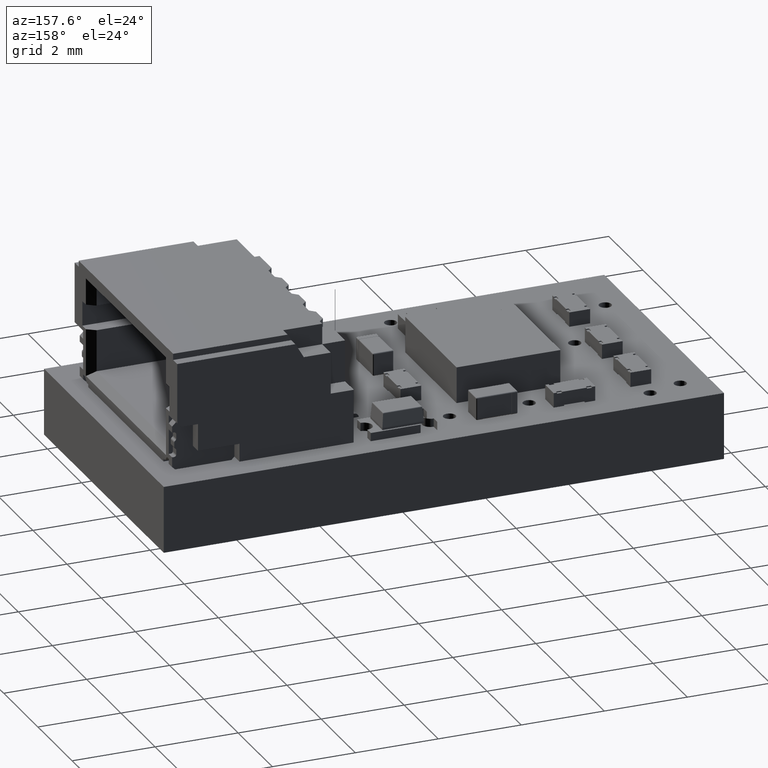
[diagram: clean part render]
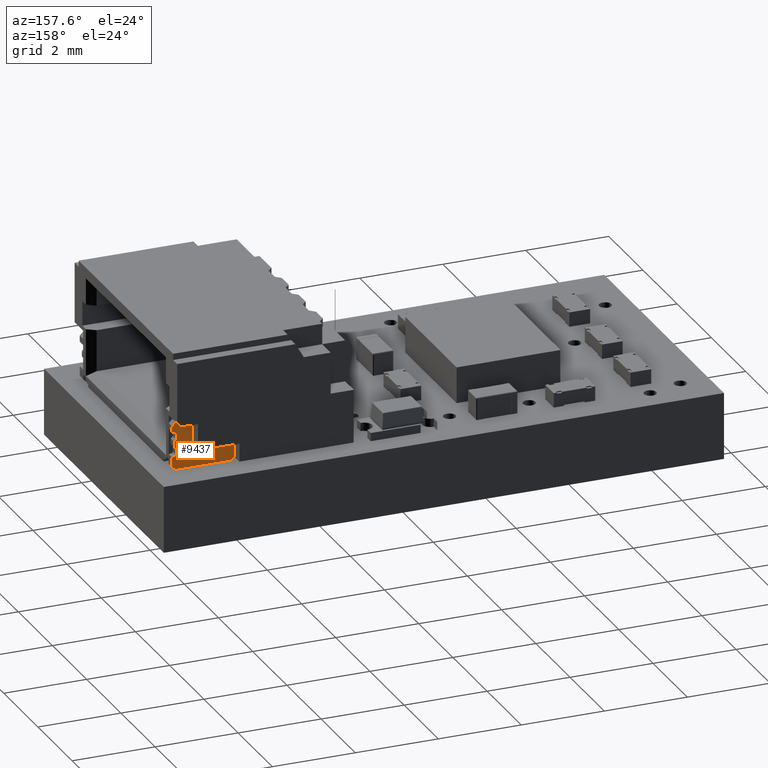
[diagram: same view with one face highlighted and labeled with its STEP entity id]
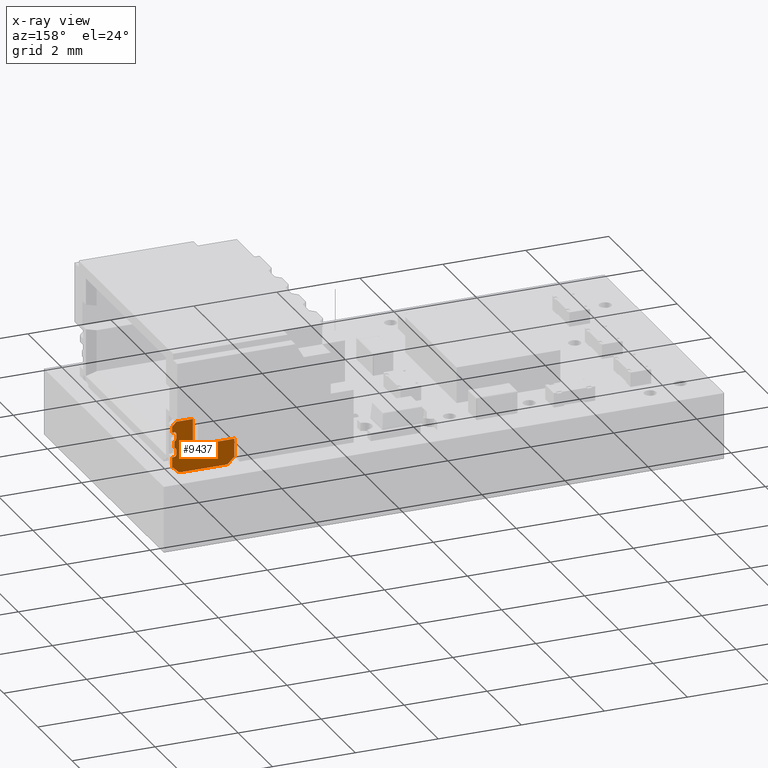
[diagram: x-ray of the same camera — body ghosted, the highlighted face saturated]
A machine part, auxiliary view. The second image highlights one B-rep face of the part: STEP entity #9437.
The next image is the same camera in x-ray: the body ghosted, the highlighted face saturated — about 0% of this face is hidden behind the body in this view.
In plain terms, the highlighted planar face has unit normal (0, -1, -0).
Its self-contained STEP definition (entity closure, byte-faithful):
#8723 = VERTEX_POINT('',#8724);
#8724 = CARTESIAN_POINT('',(2.7,1.555,3.395));
#8730 = EDGE_CURVE('',#8731,#8723,#8733,.T.);
#8731 = VERTEX_POINT('',#8732);
#8732 = CARTESIAN_POINT('',(2.7,0.905,3.395));
#8733 = LINE('',#8734,#8735);
#8734 = CARTESIAN_POINT('',(2.7,0.905,3.395));
#8735 = VECTOR('',#8736,1.);
#8736 = DIRECTION('',(0.,1.,2.668805347657E-15));
#8761 = VERTEX_POINT('',#8762);
#8762 = CARTESIAN_POINT('',(2.7,1.555,3.795));
#8768 = EDGE_CURVE('',#8723,#8761,#8769,.T.);
#8769 = LINE('',#8770,#8771);
#8770 = CARTESIAN_POINT('',(2.7,1.555,3.395));
#8771 = VECTOR('',#8772,1.);
#8772 = DIRECTION('',(7.589415207398E-15,0.,1.));
#8792 = VERTEX_POINT('',#8793);
#8793 = CARTESIAN_POINT('',(2.7,1.455,3.895));
#8799 = EDGE_CURVE('',#8761,#8792,#8800,.T.);
#8800 = LINE('',#8801,#8802);
#8801 = CARTESIAN_POINT('',(2.7,1.555,3.795));
#8802 = VECTOR('',#8803,1.);
#8803 = DIRECTION('',(3.066586833367E-15,-0.707106781187,0.707106781187)
  );
#8823 = VERTEX_POINT('',#8824);
#8824 = CARTESIAN_POINT('',(2.7,1.305,3.895));
#8830 = EDGE_CURVE('',#8792,#8823,#8831,.T.);
#8831 = LINE('',#8832,#8833);
#8832 = CARTESIAN_POINT('',(2.7,1.455,3.895));
#8833 = VECTOR('',#8834,1.);
#8834 = DIRECTION('',(0.,-1.,0.));
#8854 = VERTEX_POINT('',#8855);
#8855 = CARTESIAN_POINT('',(2.7,1.305,3.845));
#8861 = EDGE_CURVE('',#8823,#8854,#8862,.T.);
#8862 = LINE('',#8863,#8864);
#8863 = CARTESIAN_POINT('',(2.7,1.305,3.895));
#8864 = VECTOR('',#8865,1.);
#8865 = DIRECTION('',(0.,0.,-1.));
#8877 = EDGE_CURVE('',#8854,#8878,#8880,.T.);
#8878 = VERTEX_POINT('',#8879);
#8879 = CARTESIAN_POINT('',(2.7,1.255,3.795));
#8880 = CIRCLE('',#8881,5.E-02);
#8881 = AXIS2_PLACEMENT_3D('',#8882,#8883,#8884);
#8882 = CARTESIAN_POINT('',(2.7,1.255,3.845));
#8883 = DIRECTION('',(-1.,-0.,6.938893903907E-15));
#8884 = DIRECTION('',(6.938893903907E-15,0.,1.));
#8918 = VERTEX_POINT('',#8919);
#8919 = CARTESIAN_POINT('',(2.7,1.141602540378,3.795));
#8925 = EDGE_CURVE('',#8878,#8918,#8926,.T.);
#8926 = LINE('',#8927,#8928);
#8927 = CARTESIAN_POINT('',(2.7,1.255,3.795));
#8928 = VECTOR('',#8929,1.);
#8929 = DIRECTION('',(0.,-1.,0.));
#8941 = EDGE_CURVE('',#8918,#8942,#8944,.T.);
#8942 = VERTEX_POINT('',#8943);
#8943 = CARTESIAN_POINT('',(2.7,1.098301270189,3.82));
#8944 = CIRCLE('',#8945,5.E-02);
#8945 = AXIS2_PLACEMENT_3D('',#8946,#8947,#8948);
#8946 = CARTESIAN_POINT('',(2.7,1.141602540378,3.845));
#8947 = DIRECTION('',(-1.,-0.,6.938893903907E-15));
#8948 = DIRECTION('',(6.938893903907E-15,0.,1.));
#8983 = VERTEX_POINT('',#8984);
#8984 = CARTESIAN_POINT('',(2.7,1.055,3.845));
#8990 = EDGE_CURVE('',#8942,#8983,#8991,.T.);
#8991 = CIRCLE('',#8992,5.E-02);
#8992 = AXIS2_PLACEMENT_3D('',#8993,#8994,#8995);
#8993 = CARTESIAN_POINT('',(2.7,1.055,3.795));
#8994 = DIRECTION('',(1.,0.,-6.938893903907E-15));
#8995 = DIRECTION('',(-6.938893903907E-15,0.,-1.));
#9015 = VERTEX_POINT('',#9016);
#9016 = CARTESIAN_POINT('',(2.7,0.955,3.845));
#9022 = EDGE_CURVE('',#8983,#9015,#9023,.T.);
#9023 = LINE('',#9024,#9025);
#9024 = CARTESIAN_POINT('',(2.7,1.055,3.845));
#9025 = VECTOR('',#9026,1.);
#9026 = DIRECTION('',(0.,-1.,0.));
#9047 = VERTEX_POINT('',#9048);
#9048 = CARTESIAN_POINT('',(2.7,0.911698729811,3.82));
#9054 = EDGE_CURVE('',#9015,#9047,#9055,.T.);
#9055 = CIRCLE('',#9056,5.E-02);
#9056 = AXIS2_PLACEMENT_3D('',#9057,#9058,#9059);
#9057 = CARTESIAN_POINT('',(2.7,0.955,3.795));
#9058 = DIRECTION('',(1.,0.,-6.938893903907E-15));
#9059 = DIRECTION('',(6.938893903907E-15,0.,1.));
#9071 = EDGE_CURVE('',#9047,#9072,#9074,.T.);
#9072 = VERTEX_POINT('',#9073);
#9073 = CARTESIAN_POINT('',(2.7,0.868397459622,3.795));
#9074 = CIRCLE('',#9075,5.E-02);
#9075 = AXIS2_PLACEMENT_3D('',#9076,#9077,#9078);
#9076 = CARTESIAN_POINT('',(2.7,0.868397459622,3.845));
#9077 = DIRECTION('',(-1.,-0.,6.938893903907E-15));
#9078 = DIRECTION('',(-6.938893903907E-15,0.,-1.));
#9112 = VERTEX_POINT('',#9113);
#9113 = CARTESIAN_POINT('',(2.7,0.755,3.795));
#9119 = EDGE_CURVE('',#9072,#9112,#9120,.T.);
#9120 = LINE('',#9121,#9122);
#9121 = CARTESIAN_POINT('',(2.7,0.755,3.795));
#9122 = VECTOR('',#9123,1.);
#9123 = DIRECTION('',(-0.,-1.,-0.));
#9135 = EDGE_CURVE('',#9112,#9136,#9138,.T.);
#9136 = VERTEX_POINT('',#9137);
#9137 = CARTESIAN_POINT('',(2.7,0.705,3.845));
#9138 = CIRCLE('',#9139,5.E-02);
#9139 = AXIS2_PLACEMENT_3D('',#9140,#9141,#9142);
#9140 = CARTESIAN_POINT('',(2.7,0.755,3.845));
#9141 = DIRECTION('',(-1.,-0.,6.938893903907E-15));
#9142 = DIRECTION('',(-6.938893903907E-15,0.,-1.));
#9176 = VERTEX_POINT('',#9177);
#9177 = CARTESIAN_POINT('',(2.7,0.705,3.895));
#9183 = EDGE_CURVE('',#9136,#9176,#9184,.T.);
#9184 = LINE('',#9185,#9186);
#9185 = CARTESIAN_POINT('',(2.7,0.705,3.895));
#9186 = VECTOR('',#9187,1.);
#9187 = DIRECTION('',(-0.,-0.,1.));
#9207 = VERTEX_POINT('',#9208);
#9208 = CARTESIAN_POINT('',(2.7,0.47,3.895));
#9214 = EDGE_CURVE('',#9176,#9207,#9215,.T.);
#9215 = LINE('',#9216,#9217);
#9216 = CARTESIAN_POINT('',(2.7,0.705,3.895));
#9217 = VECTOR('',#9218,1.);
#9218 = DIRECTION('',(0.,-1.,0.));
#9238 = VERTEX_POINT('',#9239);
#9239 = CARTESIAN_POINT('',(2.7,0.334289321881,3.759289321881));
#9245 = EDGE_CURVE('',#9207,#9238,#9246,.T.);
#9246 = LINE('',#9247,#9248);
#9247 = CARTESIAN_POINT('',(2.7,0.47,3.895));
#9248 = VECTOR('',#9249,1.);
#9249 = DIRECTION('',(-4.519300729874E-15,-0.707106781187,
    -0.707106781187));
#9270 = VERTEX_POINT('',#9271);
#9271 = CARTESIAN_POINT('',(2.7,0.305,3.688578643763));
#9277 = EDGE_CURVE('',#9238,#9270,#9278,.T.);
#9278 = CIRCLE('',#9279,0.1);
#9279 = AXIS2_PLACEMENT_3D('',#9280,#9281,#9282);
#9280 = CARTESIAN_POINT('',(2.7,0.405,3.688578643763));
#9281 = DIRECTION('',(1.,0.,-6.938893903907E-15));
#9282 = DIRECTION('',(-6.938893903907E-15,0.,-1.));
#9302 = VERTEX_POINT('',#9303);
#9303 = CARTESIAN_POINT('',(2.7,0.305,2.601421356237));
#9309 = EDGE_CURVE('',#9270,#9302,#9310,.T.);
#9310 = LINE('',#9311,#9312);
#9311 = CARTESIAN_POINT('',(2.7,0.305,3.688578643763));
#9312 = VECTOR('',#9313,1.);
#9313 = DIRECTION('',(-6.781516214349E-15,-4.986408981139E-17,-1.));
#9334 = VERTEX_POINT('',#9335);
#9335 = CARTESIAN_POINT('',(2.7,0.334289321881,2.530710678119));
#9341 = EDGE_CURVE('',#9302,#9334,#9342,.T.);
#9342 = CIRCLE('',#9343,1.E-01);
#9343 = AXIS2_PLACEMENT_3D('',#9344,#9345,#9346);
#9344 = CARTESIAN_POINT('',(2.7,0.405,2.601421356237));
#9345 = DIRECTION('',(1.,0.,-6.938893903907E-15));
#9346 = DIRECTION('',(-6.938893903907E-15,0.,-1.));
#9366 = VERTEX_POINT('',#9367);
#9367 = CARTESIAN_POINT('',(2.7,0.47,2.395));
#9373 = EDGE_CURVE('',#9334,#9366,#9374,.T.);
#9374 = LINE('',#9375,#9376);
#9375 = CARTESIAN_POINT('',(2.7,0.334289321881,2.530710678119));
#9376 = VECTOR('',#9377,1.);
#9377 = DIRECTION('',(-4.519300729874E-15,0.707106781187,-0.707106781187
    ));
#9397 = VERTEX_POINT('',#9398);
#9398 = CARTESIAN_POINT('',(2.7,0.905,2.395));
#9404 = EDGE_CURVE('',#9366,#9397,#9405,.T.);
#9405 = LINE('',#9406,#9407);
#9406 = CARTESIAN_POINT('',(2.7,0.47,2.395));
#9407 = VECTOR('',#9408,1.);
#9408 = DIRECTION('',(0.,1.,1.993935029858E-15));
#9426 = EDGE_CURVE('',#9397,#8731,#9427,.T.);
#9427 = LINE('',#9428,#9429);
#9428 = CARTESIAN_POINT('',(2.7,0.905,2.395));
#9429 = VECTOR('',#9430,1.);
#9430 = DIRECTION('',(6.938893903907E-15,-2.710505431214E-15,1.));
#9437 = ADVANCED_FACE('',(#9438),#9463,.F.);
#9438 = FACE_BOUND('',#9439,.T.);
#9439 = EDGE_LOOP('',(#9440,#9441,#9442,#9443,#9444,#9445,#9446,#9447,
    #9448,#9449,#9450,#9451,#9452,#9453,#9454,#9455,#9456,#9457,#9458,
    #9459,#9460,#9461,#9462));
#9440 = ORIENTED_EDGE('',*,*,#8730,.T.);
#9441 = ORIENTED_EDGE('',*,*,#8768,.T.);
#9442 = ORIENTED_EDGE('',*,*,#8799,.T.);
#9443 = ORIENTED_EDGE('',*,*,#8830,.T.);
#9444 = ORIENTED_EDGE('',*,*,#8861,.T.);
#9445 = ORIENTED_EDGE('',*,*,#8877,.T.);
#9446 = ORIENTED_EDGE('',*,*,#8925,.T.);
#9447 = ORIENTED_EDGE('',*,*,#8941,.T.);
#9448 = ORIENTED_EDGE('',*,*,#8990,.T.);
#9449 = ORIENTED_EDGE('',*,*,#9022,.T.);
#9450 = ORIENTED_EDGE('',*,*,#9054,.T.);
#9451 = ORIENTED_EDGE('',*,*,#9071,.T.);
#9452 = ORIENTED_EDGE('',*,*,#9119,.T.);
#9453 = ORIENTED_EDGE('',*,*,#9135,.T.);
#9454 = ORIENTED_EDGE('',*,*,#9183,.T.);
#9455 = ORIENTED_EDGE('',*,*,#9214,.T.);
#9456 = ORIENTED_EDGE('',*,*,#9245,.T.);
#9457 = ORIENTED_EDGE('',*,*,#9277,.T.);
#9458 = ORIENTED_EDGE('',*,*,#9309,.T.);
#9459 = ORIENTED_EDGE('',*,*,#9341,.T.);
#9460 = ORIENTED_EDGE('',*,*,#9373,.T.);
#9461 = ORIENTED_EDGE('',*,*,#9404,.T.);
#9462 = ORIENTED_EDGE('',*,*,#9426,.T.);
#9463 = PLANE('',#9464);
#9464 = AXIS2_PLACEMENT_3D('',#9465,#9466,#9467);
#9465 = CARTESIAN_POINT('',(2.7,1.255,3.845));
#9466 = DIRECTION('',(-1.,-0.,6.938893903907E-15));
#9467 = DIRECTION('',(6.938893903907E-15,0.,1.));